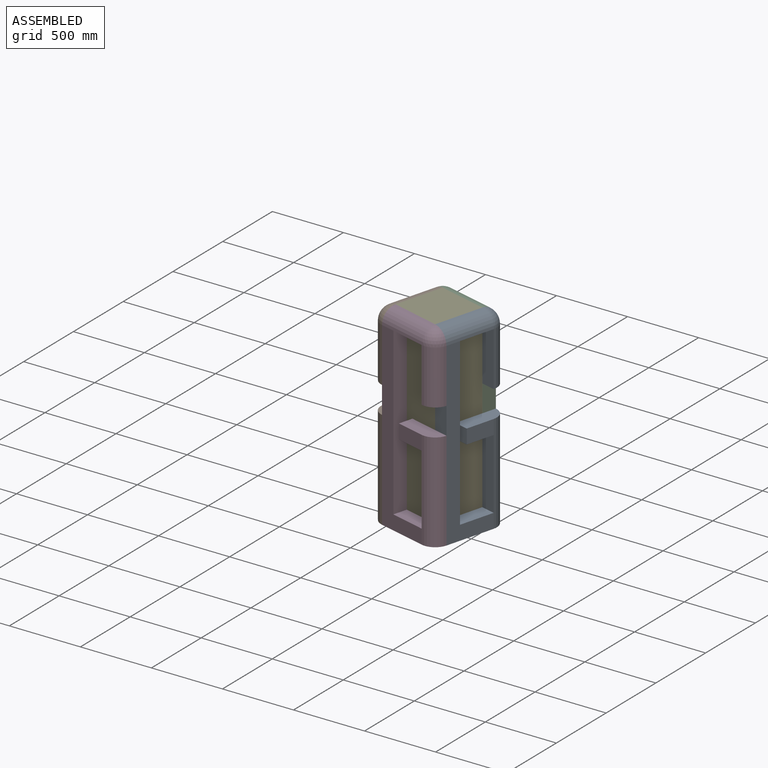
[diagram: assembled view]
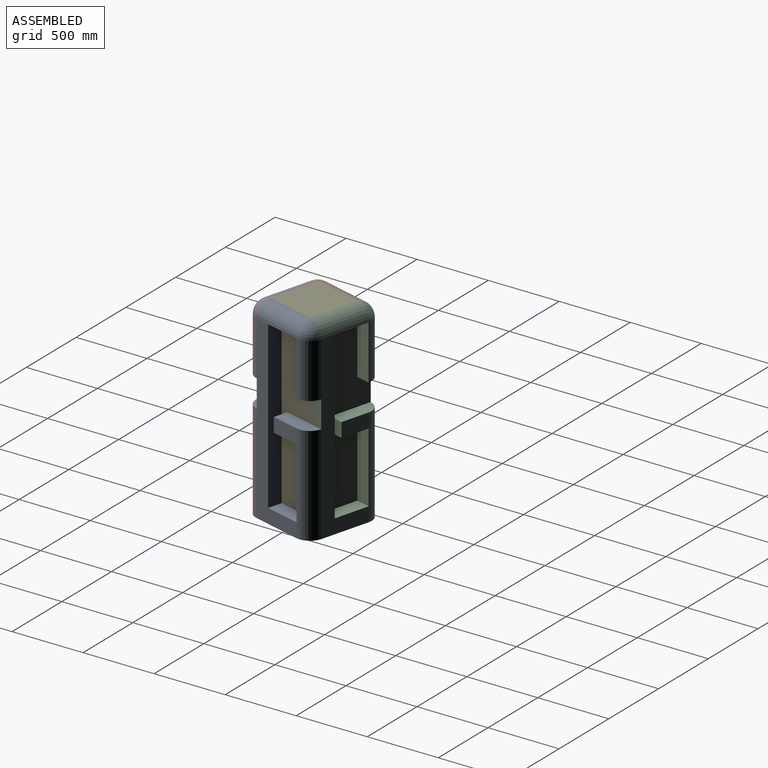
[diagram: assembled view, second angle]
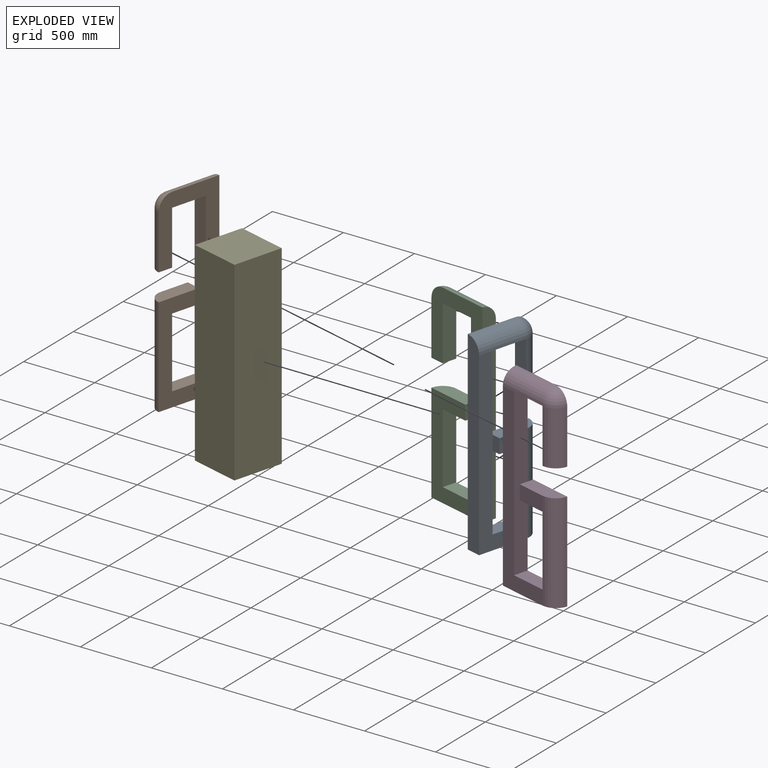
[diagram: exploded view]
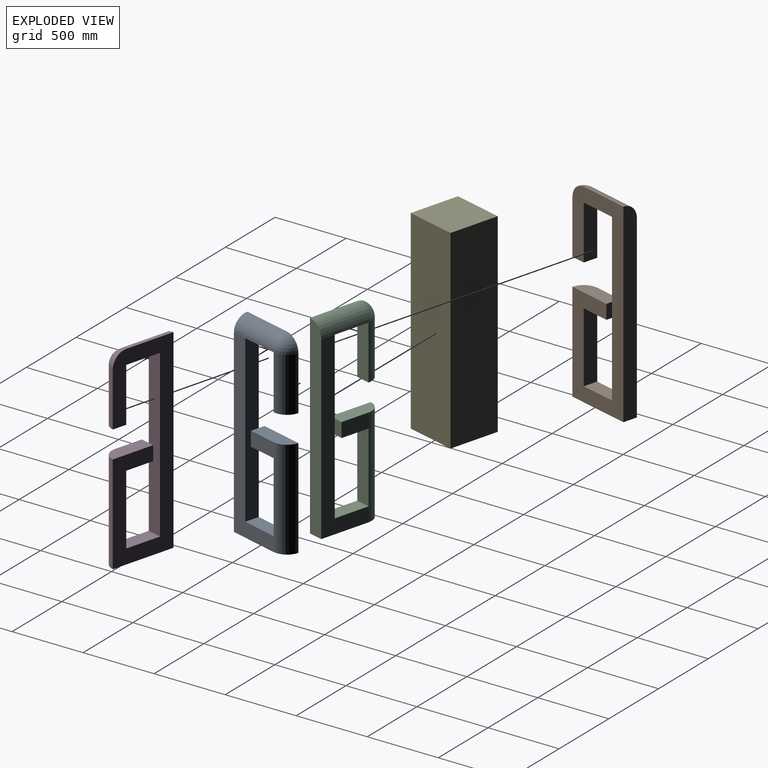
[diagram: exploded view, second angle]
ASSEMBLY  parts=5 mates=4
PART A: 18 faces, bbox 457.2x101.6x1371.6 mm
  f0: plane 1270x355.6mm, normal (0,-1,0), area 154838.4mm2, adj f5,f6,f10,f11,f15,f16
  f1: plane 304.8x101.6mm, normal (0,0,1), area 28752.4mm2, adj f2,f12,f13,f15
  f2: plane 101.6x101.6mm, normal (-1,0,0), area 10322.6mm2, adj f1,f3,f12,f13
  f3: plane 203.2x101.6mm, normal (0,0,-1), area 20645.1mm2, adj f2,f4,f12,f13
  f4: plane 495.3x101.6mm, normal (-1,0,0), area 50322.5mm2, adj f3,f5,f13,f15
  f5: plane 254x101.6mm, normal (0,0,1), area 25806.4mm2, adj f0,f4,f6,f13
  f6: plane 1168.4x101.6mm, normal (1,0,0), area 118709.4mm2, adj f0,f5,f7,f13
  f7: plane 254x101.6mm, normal (0,0,-1), area 25806.4mm2, adj f6,f8,f13,f16
  f8: plane 381x101.6mm, normal (-1,0,0), area 38709.6mm2, adj f7,f9,f13,f14
  f9: plane 101.6x101.6mm, normal (0,0,-1), area 8107.3mm2, adj f8,f13,f14
  f10: plane 1371.6x101.6mm, normal (-1,0,0), area 137139.3mm2, adj f0,f11,f13,f16
  f11: plane 457.2x101.6mm, normal (0,0,-1), area 44236.3mm2, adj f0,f10,f13,f15
  f12: plane 203.2x101.6mm, normal (0,-1,0), area 20645.1mm2, adj f1,f2,f3,f15
  f13: plane 1371.6x457.2mm, normal (0,1,0), area 329397mm2, adj f1,f2,f3,f4,f5,f6,f7,f8
  f14: cylinder r=101.6mm len=381mm, axis (0,0,-1), area 60804.9mm2, adj f8,f9,f13,f17
  f15: cylinder r=101.6mm len=698.5mm, axis (0,0,-1), area 111475.6mm2, adj f0,f1,f4,f11,f12,f13
  f16: cylinder r=101.6mm len=355.6mm, axis (1,0,0), area 56751.2mm2, adj f0,f7,f10,f13,f17
  f17: sphere r=101.6mm, area 16214.6mm2, adj f13,f14,f16
PART B: same geometry as A
PART C: same geometry as A
PART D: same geometry as A
PART E: 6 faces, bbox 355.6x355.6x1371.6 mm
  f0: plane 1371.6x355.6mm, normal (0,1,0), area 487741mm2, adj f1,f3,f4,f5
  f1: plane 1371.6x355.6mm, normal (-1,0,0), area 487741mm2, adj f0,f2,f4,f5
  f2: plane 1371.6x355.6mm, normal (0,-1,0), area 487741mm2, adj f1,f3,f4,f5
  f3: plane 1371.6x355.6mm, normal (1,0,0), area 487741mm2, adj f0,f2,f4,f5
  f4: plane 355.6x355.6mm, normal (0,0,1), area 126451.4mm2, adj f0,f1,f2,f3
  f5: plane 355.6x355.6mm, normal (0,0,-1), area 126451.4mm2, adj f0,f1,f2,f3
PLACE A rot(axis=(0,0,1),75deg) t=(-1131.44,-174.41,-901.05)mm
PLACE B rot(axis=(0,0,-1),105deg) t=(-1382.89,261.11,-901.05)mm
PLACE C rot(axis=(0,0,1),165deg) t=(-1039.4,169.08,-901.05)mm
PLACE D rot(axis=(0,0,-1),15deg) t=(-1474.92,-82.37,-901.05)mm
PLACE E rot(axis=(0,0,-1),15deg) t=(-1474.92,-82.37,-901.05)mm
MATE fastened A.f13 <-> C.f10  axis (-0.97,0.26,0) through (-1013.11,267.22,-901.05)mm
MATE fastened A.f10 <-> D.f13  axis (-0.26,-0.97,0) through (-1033.3,-200.7,-901.05)mm
MATE fastened B.f13 <-> D.f10  axis (0.97,-0.26,0) through (-1501.22,-180.51,-901.05)mm
MATE fastened E.f2 <-> D.f13  axis (-0.26,-0.97,0) through (-1303.18,-128.39,470.55)mm
